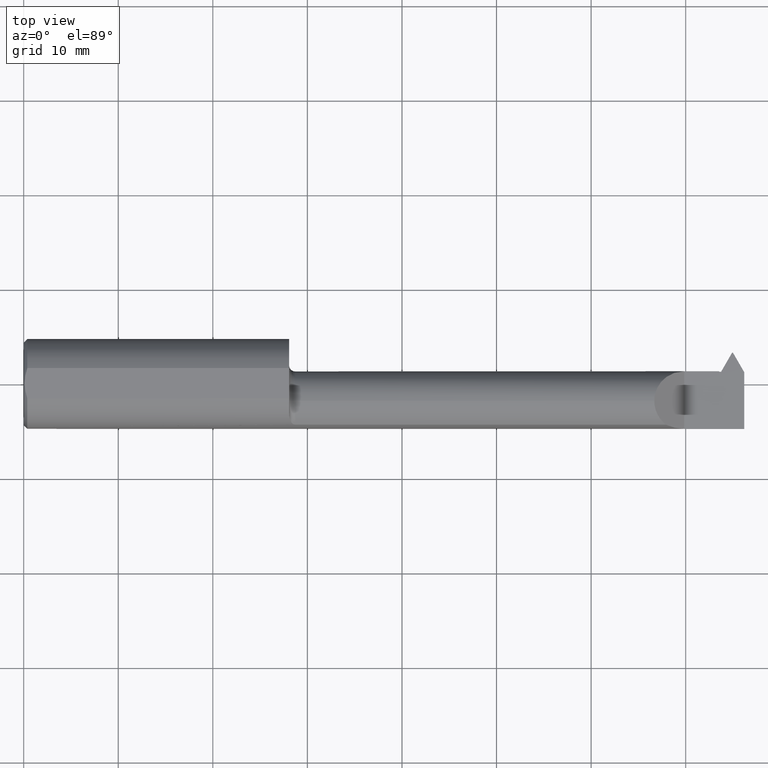
[diagram: clean part render]
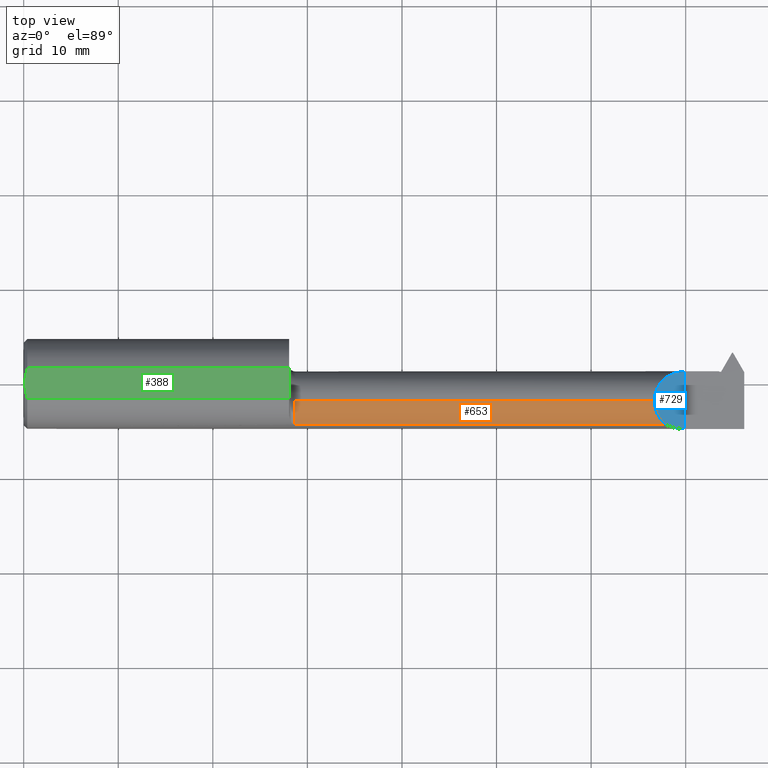
[diagram: same view with three faces highlighted in distinct colors, each labeled with its STEP entity id]
A machine part, top view with three faces highlighted in distinct colors.
Their STEP definitions:

[orange] entity #653 — the highlighted cylindrical surface (edge-blend (fillet) strip) has radius 3.175 mm, axis along (-1, -0, -0).
#58 = CARTESIAN_POINT ( 'NONE',  ( 2.625350000000000961, -0.07234999999999998377, 0.1250000000000000000 ) ) ;
#73 = EDGE_CURVE ( 'NONE', #628, #916, #808, .T. ) ;
#87 = EDGE_CURVE ( 'NONE', #767, #628, #414, .T. ) ;
#96 = CARTESIAN_POINT ( 'NONE',  ( 1.130000000000000115, -0.07234999999999998377, 0.1250000000000000000 ) ) ;
#130 = DIRECTION ( 'NONE',  ( 0.000000000000000000, 0.000000000000000000, 1.000000000000000000 ) ) ;
#185 = CARTESIAN_POINT ( 'NONE',  ( 2.002500000000000391, -0.1707639599170698019, 0.07706940050007766996 ) ) ;
#208 = VECTOR ( 'NONE', #342, 39.37007874015748143 ) ;
#223 = EDGE_LOOP ( 'NONE', ( #633, #634, #673, #837 ) ) ;
#275 = DIRECTION ( 'NONE',  ( 0.000000000000000000, 0.000000000000000000, -1.000000000000000000 ) ) ;
#295 = CARTESIAN_POINT ( 'NONE',  ( 2.673280599499922694, -0.1707639599170701628, 0.07706940050007689280 ) ) ;
#334 = EDGE_CURVE ( 'NONE', #390, #916, #781, .T. ) ;
#342 = DIRECTION ( 'NONE',  ( 1.000000000000000000, 0.000000000000000000, 0.000000000000000000 ) ) ;
#359 = CYLINDRICAL_SURFACE ( 'NONE', #463, 0.1250000000000000000 ) ;
#360 = CARTESIAN_POINT ( 'NONE',  ( 2.625350000000000517, -0.1114715001235034170, 0.1249999999999999861 ) ) ;
#390 = VERTEX_POINT ( 'NONE', #458 ) ;
#414 = CIRCLE ( 'NONE', #426, 0.1250000000000000000 ) ;
#421 = CARTESIAN_POINT ( 'NONE',  ( 2.673280599499922694, -0.1707639599170701628, 0.07706940050007689280 ) ) ;
#426 = AXIS2_PLACEMENT_3D ( 'NONE', #797, #945, #275 ) ;
#432 = LINE ( 'NONE', #578, #903 ) ;
#439 = CARTESIAN_POINT ( 'NONE',  ( 1.130000000000000115, -0.1707639599170698019, 0.07706940050007766996 ) ) ;
#458 = CARTESIAN_POINT ( 'NONE',  ( 2.625350000000000961, -0.07234999999999998377, 0.1250000000000000000 ) ) ;
#463 = AXIS2_PLACEMENT_3D ( 'NONE', #967, #579, #130 ) ;
#495 = DIRECTION ( 'NONE',  ( -1.000000000000000000, -0.000000000000000000, -0.000000000000000000 ) ) ;
#578 = CARTESIAN_POINT ( 'NONE',  ( 1.105000000000000204, -0.07234999999999998377, 0.1250000000000000000 ) ) ;
#579 = DIRECTION ( 'NONE',  ( -1.000000000000000000, -0.000000000000000000, -0.000000000000000000 ) ) ;
#594 = FACE_OUTER_BOUND ( 'NONE', #223, .T. ) ;
#628 = VERTEX_POINT ( 'NONE', #439 ) ;
#633 = ORIENTED_EDGE ( 'NONE', *, *, #334, .F. ) ;
#634 = ORIENTED_EDGE ( 'NONE', *, *, #847, .T. ) ;
#653 = ADVANCED_FACE ( 'NONE', ( #594 ), #359, .T. ) ;
#673 = ORIENTED_EDGE ( 'NONE', *, *, #87, .T. ) ;
#767 = VERTEX_POINT ( 'NONE', #96 ) ;
#781 =( BOUNDED_CURVE ( )  B_SPLINE_CURVE ( 3, ( #58, #360, #973, #295 ),
 .UNSPECIFIED., .F., .F. ) 
 B_SPLINE_CURVE_WITH_KNOTS ( ( 4, 4 ),
 ( 0.000000000000000000, 0.9064365498903768081 ),
 .UNSPECIFIED. ) 
 CURVE ( )  GEOMETRIC_REPRESENTATION_ITEM ( )  RATIONAL_B_SPLINE_CURVE ( ( 1.000000000000000000, 0.9326950686634384313, 0.9326950686634384313, 1.000000000000000000 ) ) 
 REPRESENTATION_ITEM ( '' )  );
#797 = CARTESIAN_POINT ( 'NONE',  ( 1.130000000000000115, -0.07234999999999998377, 0.000000000000000000 ) ) ;
#808 = LINE ( 'NONE', #185, #208 ) ;
#837 = ORIENTED_EDGE ( 'NONE', *, *, #73, .T. ) ;
#847 = EDGE_CURVE ( 'NONE', #390, #767, #432, .T. ) ;
#903 = VECTOR ( 'NONE', #495, 39.37007874015748143 ) ;
#916 = VERTEX_POINT ( 'NONE', #421 ) ;
#945 = DIRECTION ( 'NONE',  ( 1.000000000000000000, 0.000000000000000000, 0.000000000000000000 ) ) ;
#967 = CARTESIAN_POINT ( 'NONE',  ( 1.105000000000000204, -0.07234999999999998377, 0.000000000000000000 ) ) ;
#973 = CARTESIAN_POINT ( 'NONE',  ( 2.642479785539522563, -0.1466433954276133433, 0.1078702144604781754 ) ) ;

[blue] entity #729 — the highlighted planar face has unit normal (-0.7071, 0, -0.7071).
#21 = DIRECTION ( 'NONE',  ( -0.7071067811865484609, 0.000000000000000000, -0.7071067811865466846 ) ) ;
#58 = CARTESIAN_POINT ( 'NONE',  ( 2.625350000000000961, -0.07234999999999998377, 0.1250000000000000000 ) ) ;
#101 = DIRECTION ( 'NONE',  ( -0.7071067811865465735, 0.000000000000000000, 0.7071067811865483499 ) ) ;
#104 = VERTEX_POINT ( 'NONE', #108 ) ;
#108 = CARTESIAN_POINT ( 'NONE',  ( 2.750000000000000444, 0.05264950999903968143, 0.0003499999999995605151 ) ) ;
#150 = CARTESIAN_POINT ( 'NONE',  ( 2.625350000000000961, -0.07234999999999998377, 0.1250000000000000000 ) ) ;
#195 = VECTOR ( 'NONE', #747, 39.37007874015748143 ) ;
#217 = VERTEX_POINT ( 'NONE', #683 ) ;
#295 = CARTESIAN_POINT ( 'NONE',  ( 2.673280599499922694, -0.1707639599170701628, 0.07706940050007689280 ) ) ;
#328 = FACE_OUTER_BOUND ( 'NONE', #402, .T. ) ;
#334 = EDGE_CURVE ( 'NONE', #390, #916, #781, .T. ) ;
#360 = CARTESIAN_POINT ( 'NONE',  ( 2.625350000000000517, -0.1114715001235034170, 0.1249999999999999861 ) ) ;
#390 = VERTEX_POINT ( 'NONE', #458 ) ;
#396 = CARTESIAN_POINT ( 'NONE',  ( 2.750000000000000444, -0.1873496730715054903, 0.0003499999999995605151 ) ) ;
#402 = EDGE_LOOP ( 'NONE', ( #550, #467, #612, #406 ) ) ;
#406 = ORIENTED_EDGE ( 'NONE', *, *, #778, .F. ) ;
#421 = CARTESIAN_POINT ( 'NONE',  ( 2.673280599499922694, -0.1707639599170701628, 0.07706940050007689280 ) ) ;
#427 = LINE ( 'NONE', #834, #195 ) ;
#458 = CARTESIAN_POINT ( 'NONE',  ( 2.625350000000000961, -0.07234999999999998377, 0.1250000000000000000 ) ) ;
#467 = ORIENTED_EDGE ( 'NONE', *, *, #809, .T. ) ;
#473 = PLANE ( 'NONE',  #539 ) ;
#502 =( BOUNDED_CURVE ( )  B_SPLINE_CURVE ( 3, ( #396, #790, #626, #560 ),
 .UNSPECIFIED., .F., .T. ) 
 B_SPLINE_CURVE_WITH_KNOTS ( ( 4, 4 ),
 ( 4.714257142666967049, 5.136341099405663968 ),
 .UNSPECIFIED. ) 
 CURVE ( )  GEOMETRIC_REPRESENTATION_ITEM ( )  RATIONAL_B_SPLINE_CURVE ( ( 1.000000000000000000, 0.9852087820824332320, 0.9852087820824332320, 1.000000000000000000 ) ) 
 REPRESENTATION_ITEM ( '' )  );
#539 = AXIS2_PLACEMENT_3D ( 'NONE', #717, #21, #101 ) ;
#550 = ORIENTED_EDGE ( 'NONE', *, *, #568, .F. ) ;
#560 = CARTESIAN_POINT ( 'NONE',  ( 2.673280599499922694, -0.1707639599170701628, 0.07706940050007689280 ) ) ;
#565 = CARTESIAN_POINT ( 'NONE',  ( 2.676939441571128508, 0.05244493963352150206, 0.07341055842887220240 ) ) ;
#568 = EDGE_CURVE ( 'NONE', #104, #217, #427, .T. ) ;
#612 = ORIENTED_EDGE ( 'NONE', *, *, #334, .T. ) ;
#626 = CARTESIAN_POINT ( 'NONE',  ( 2.697486258657503466, -0.1816884877910426022, 0.05286374134249623852 ) ) ;
#630 = CARTESIAN_POINT ( 'NONE',  ( 2.625350000000000517, 0.0007108448279454899175, 0.1250000000000000000 ) ) ;
#683 = CARTESIAN_POINT ( 'NONE',  ( 2.750000000000000444, -0.1873496730715054903, 0.0003499999999995605151 ) ) ;
#717 = CARTESIAN_POINT ( 'NONE',  ( 2.574000000000000288, 0.1749999999999999889, 0.1763499999999999790 ) ) ;
#729 = ADVANCED_FACE ( 'NONE', ( #328 ), #473, .F. ) ;
#747 = DIRECTION ( 'NONE',  ( 0.000000000000000000, -1.000000000000000000, 0.000000000000000000 ) ) ;
#748 =( BOUNDED_CURVE ( )  B_SPLINE_CURVE ( 3, ( #783, #565, #630, #150 ),
 .UNSPECIFIED., .F., .T. ) 
 B_SPLINE_CURVE_WITH_KNOTS ( ( 4, 4 ),
 ( 4.715188984043368059, 6.283185307179586232 ),
 .UNSPECIFIED. ) 
 CURVE ( )  GEOMETRIC_REPRESENTATION_ITEM ( )  RATIONAL_B_SPLINE_CURVE ( ( 1.000000000000000000, 0.8053973591226792905, 0.8053973591226792905, 1.000000000000000000 ) ) 
 REPRESENTATION_ITEM ( '' )  );
#778 = EDGE_CURVE ( 'NONE', #217, #916, #502, .T. ) ;
#781 =( BOUNDED_CURVE ( )  B_SPLINE_CURVE ( 3, ( #58, #360, #973, #295 ),
 .UNSPECIFIED., .F., .F. ) 
 B_SPLINE_CURVE_WITH_KNOTS ( ( 4, 4 ),
 ( 0.000000000000000000, 0.9064365498903768081 ),
 .UNSPECIFIED. ) 
 CURVE ( )  GEOMETRIC_REPRESENTATION_ITEM ( )  RATIONAL_B_SPLINE_CURVE ( ( 1.000000000000000000, 0.9326950686634384313, 0.9326950686634384313, 1.000000000000000000 ) ) 
 REPRESENTATION_ITEM ( '' )  );
#783 = CARTESIAN_POINT ( 'NONE',  ( 2.750000000000000444, 0.05264950999903968143, 0.0003499999999995605151 ) ) ;
#790 = CARTESIAN_POINT ( 'NONE',  ( 2.723443328839087574, -0.1873000608423837643, 0.02690667116091299133 ) ) ;
#809 = EDGE_CURVE ( 'NONE', #104, #390, #748, .T. ) ;
#834 = CARTESIAN_POINT ( 'NONE',  ( 2.750000000000000444, 0.2999999999999999889, 0.0003499999999995605151 ) ) ;
#916 = VERTEX_POINT ( 'NONE', #421 ) ;
#973 = CARTESIAN_POINT ( 'NONE',  ( 2.642479785539522563, -0.1466433954276133433, 0.1078702144604781754 ) ) ;

[green] entity #388 — the highlighted planar face has unit normal (-0, 0, -1).
#68 = ORIENTED_EDGE ( 'NONE', *, *, #408, .T. ) ;
#88 = DIRECTION ( 'NONE',  ( -0.000000000000000000, 0.000000000000000000, -1.000000000000000000 ) ) ;
#98 = CARTESIAN_POINT ( 'NONE',  ( 0.008774081248147729342, -0.04260406931483737281, 0.1763499999999999790 ) ) ;
#113 = VECTOR ( 'NONE', #681, 39.37007874015748143 ) ;
#115 = EDGE_CURVE ( 'NONE', #440, #245, #711, .T. ) ;
#146 = CARTESIAN_POINT ( 'NONE',  ( 0.004000000000001806798, 1.478949963872918835E-16, 0.1763499999999999790 ) ) ;
#155 = CARTESIAN_POINT ( 'NONE',  ( 0.004000000000001806798, 1.478949963872918835E-16, 0.1763499999999999790 ) ) ;
#162 = FACE_OUTER_BOUND ( 'NONE', #230, .T. ) ;
#166 = DIRECTION ( 'NONE',  ( -1.000000000000000000, 0.000000000000000000, 0.000000000000000000 ) ) ;
#173 = LINE ( 'NONE', #453, #113 ) ;
#175 = CARTESIAN_POINT ( 'NONE',  ( 0.000000000000000000, 0.1749999999999999889, 0.1763499999999999790 ) ) ;
#202 = DIRECTION ( 'NONE',  ( 1.000000000000000000, 0.000000000000000000, 0.000000000000000000 ) ) ;
#229 = CARTESIAN_POINT ( 'NONE',  ( 1.105000000000000204, -0.06325108694718215019, 0.1763499999999999790 ) ) ;
#230 = EDGE_LOOP ( 'NONE', ( #773, #436, #774, #68, #244 ) ) ;
#231 = VERTEX_POINT ( 'NONE', #229 ) ;
#244 = ORIENTED_EDGE ( 'NONE', *, *, #292, .F. ) ;
#245 = VERTEX_POINT ( 'NONE', #146 ) ;
#252 = CARTESIAN_POINT ( 'NONE',  ( 0.01500000000000407431, 0.06325108694718213631, 0.1763499999999999790 ) ) ;
#256 = VECTOR ( 'NONE', #823, 39.37007874015748143 ) ;
#266 = VERTEX_POINT ( 'NONE', #894 ) ;
#271 = CARTESIAN_POINT ( 'NONE',  ( 0.008798171893812552213, 0.04269596770163364835, 0.1763499999999999790 ) ) ;
#292 = EDGE_CURVE ( 'NONE', #231, #765, #960, .T. ) ;
#311 = CARTESIAN_POINT ( 'NONE',  ( 0.004000000000003662952, -0.01076149482173470104, 0.1763499999999999512 ) ) ;
#324 = CARTESIAN_POINT ( 'NONE',  ( 0.004991821518936828857, -0.02143118227845417639, 0.1763499999999999790 ) ) ;
#350 = CARTESIAN_POINT ( 'NONE',  ( 0.004000000000001806798, 1.478949963872918835E-16, 0.1763499999999999790 ) ) ;
#388 = ADVANCED_FACE ( 'NONE', ( #162 ), #693, .F. ) ;
#392 = CARTESIAN_POINT ( 'NONE',  ( 0.01157529649259233726, -0.05310709997271137461, 0.1763500000000000068 ) ) ;
#407 = CARTESIAN_POINT ( 'NONE',  ( 0.01500000000000406737, -0.06325108694718213631, 0.1763499999999999790 ) ) ;
#408 = EDGE_CURVE ( 'NONE', #245, #765, #577, .T. ) ;
#415 = VECTOR ( 'NONE', #202, 39.37007874015748143 ) ;
#423 = CARTESIAN_POINT ( 'NONE',  ( 0.01155577088586426382, 0.05304926503900148083, 0.1763499999999999512 ) ) ;
#436 = ORIENTED_EDGE ( 'NONE', *, *, #564, .F. ) ;
#440 = VERTEX_POINT ( 'NONE', #252 ) ;
#453 = CARTESIAN_POINT ( 'NONE',  ( 1.105000000000000204, 0.1749999999999999889, 0.1763499999999999790 ) ) ;
#454 = CARTESIAN_POINT ( 'NONE',  ( 3.000000000000000444, -0.06325108694718233060, 0.1763499999999999235 ) ) ;
#488 = CARTESIAN_POINT ( 'NONE',  ( 0.005015674426662234536, 0.02160712711892617474, 0.1763499999999999790 ) ) ;
#491 = AXIS2_PLACEMENT_3D ( 'NONE', #175, #88, #166 ) ;
#497 = CARTESIAN_POINT ( 'NONE',  ( 0.004000000000003702851, 0.01076648422130179437, 0.1763500000000000068 ) ) ;
#564 = EDGE_CURVE ( 'NONE', #440, #266, #575, .T. ) ;
#575 = LINE ( 'NONE', #879, #415 ) ;
#577 = B_SPLINE_CURVE_WITH_KNOTS ( 'NONE', 3,
 ( #155, #311, #324, #98, #392, #689 ),
 .UNSPECIFIED., .F., .F.,
 ( 4, 2, 4 ),
 ( 0.005879827338980729567, 0.006688927827500036269, 0.007498028316019342970 ),
 .UNSPECIFIED. ) ;
#681 = DIRECTION ( 'NONE',  ( 0.000000000000000000, -1.000000000000000000, 0.000000000000000000 ) ) ;
#689 = CARTESIAN_POINT ( 'NONE',  ( 0.01500000000000406737, -0.06325108694718213631, 0.1763499999999999790 ) ) ;
#693 = PLANE ( 'NONE',  #491 ) ;
#711 = B_SPLINE_CURVE_WITH_KNOTS ( 'NONE', 3,
 ( #880, #423, #271, #488, #497, #350 ),
 .UNSPECIFIED., .F., .F.,
 ( 4, 2, 4 ),
 ( 0.004260876108247161481, 0.005070351723613945524, 0.005879827338980729567 ),
 .UNSPECIFIED. ) ;
#765 = VERTEX_POINT ( 'NONE', #407 ) ;
#773 = ORIENTED_EDGE ( 'NONE', *, *, #821, .F. ) ;
#774 = ORIENTED_EDGE ( 'NONE', *, *, #115, .T. ) ;
#821 = EDGE_CURVE ( 'NONE', #266, #231, #173, .T. ) ;
#823 = DIRECTION ( 'NONE',  ( -1.000000000000000000, -0.000000000000000000, -0.000000000000000000 ) ) ;
#879 = CARTESIAN_POINT ( 'NONE',  ( 3.000000000000000444, 0.06325108694718233060, 0.1763499999999999235 ) ) ;
#880 = CARTESIAN_POINT ( 'NONE',  ( 0.01500000000000407431, 0.06325108694718213631, 0.1763499999999999790 ) ) ;
#894 = CARTESIAN_POINT ( 'NONE',  ( 1.105000000000000204, 0.06325108694718233060, 0.1763499999999999790 ) ) ;
#960 = LINE ( 'NONE', #454, #256 ) ;